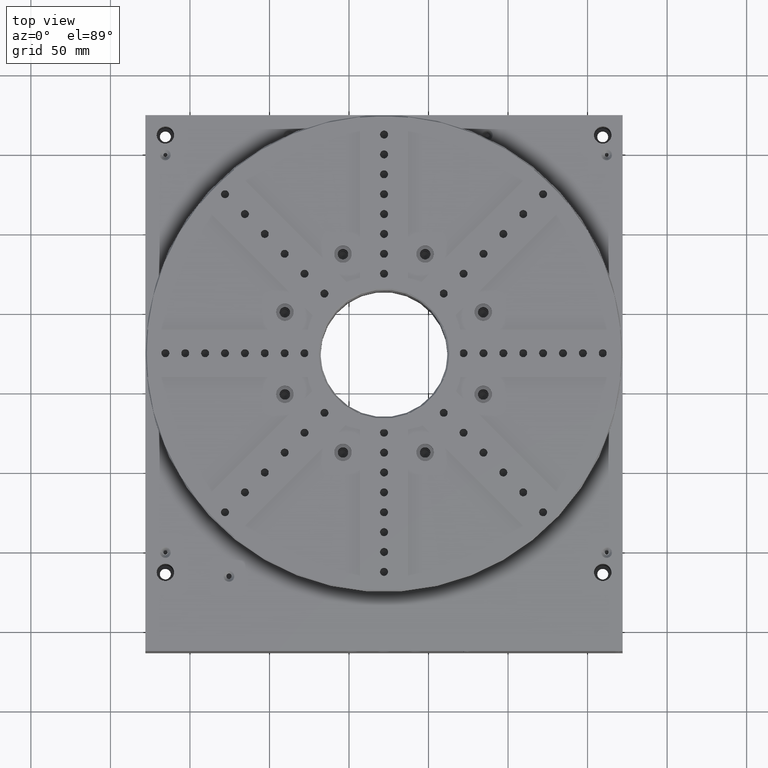
[diagram: clean part render]
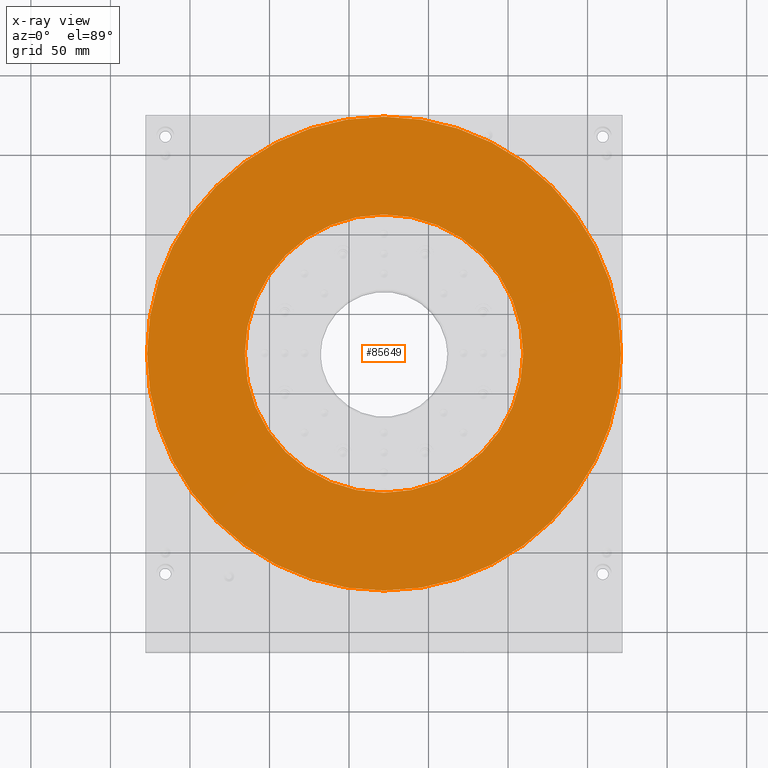
[diagram: x-ray — body ghosted, one internal face saturated and labeled with its STEP entity id]
A machine part, top view, then the same camera in x-ray: the body is ghosted and one INTERNAL B-rep face — a face not visible from any outside direction — is saturated and labeled: STEP entity #85649.
In plain terms, the highlighted planar face has unit normal (0, 0, 1).
Its self-contained STEP definition (entity closure, byte-faithful):
#8804 = AXIS2_PLACEMENT_3D ( 'NONE', #88772, #28481, #85054 ) ;
#13086 = ORIENTED_EDGE ( 'NONE', *, *, #64956, .T. ) ;
#17137 = FACE_BOUND ( 'NONE', #91481, .T. ) ;
#21084 = DIRECTION ( 'NONE',  ( 1.000000000000000000, 0.000000000000000000, 0.000000000000000000 ) ) ;
#21150 = CARTESIAN_POINT ( 'NONE',  ( -165.4981614067040141, 23.85578295678970306, 369.0000000000000000 ) ) ;
#27479 = VERTEX_POINT ( 'NONE', #143444 ) ;
#28481 = DIRECTION ( 'NONE',  ( 0.000000000000000000, 0.000000000000000000, 1.000000000000000000 ) ) ;
#31273 = FACE_OUTER_BOUND ( 'NONE', #88185, .T. ) ;
#36114 = VERTEX_POINT ( 'NONE', #53141 ) ;
#37380 = CARTESIAN_POINT ( 'NONE',  ( -77.99816140670421305, 23.85578295678970306, 369.0000000000000000 ) ) ;
#43176 = DIRECTION ( 'NONE',  ( 0.000000000000000000, 0.000000000000000000, -1.000000000000000000 ) ) ;
#48669 = AXIS2_PLACEMENT_3D ( 'NONE', #127154, #68728, #143144 ) ;
#51535 = DIRECTION ( 'NONE',  ( 0.000000000000000000, 0.000000000000000000, 1.000000000000000000 ) ) ;
#53141 = CARTESIAN_POINT ( 'NONE',  ( 9.501838593295840241, 23.85578295678970306, 369.0000000000000000 ) ) ;
#54129 = CARTESIAN_POINT ( 'NONE',  ( -226.9981614067044973, 23.85578295678970306, 369.0000000000000000 ) ) ;
#55644 = VERTEX_POINT ( 'NONE', #21150 ) ;
#64956 = EDGE_CURVE ( 'NONE', #27479, #98515, #132900, .T. ) ;
#68728 = DIRECTION ( 'NONE',  ( 0.000000000000000000, 0.000000000000000000, -1.000000000000000000 ) ) ;
#68817 = AXIS2_PLACEMENT_3D ( 'NONE', #37380, #51535, #69401 ) ;
#69401 = DIRECTION ( 'NONE',  ( 1.000000000000000000, 0.000000000000000000, 0.000000000000000000 ) ) ;
#69506 = ORIENTED_EDGE ( 'NONE', *, *, #77711, .T. ) ;
#71404 = EDGE_CURVE ( 'NONE', #36114, #55644, #135007, .T. ) ;
#77711 = EDGE_CURVE ( 'NONE', #98515, #27479, #87904, .T. ) ;
#80153 = CIRCLE ( 'NONE', #104259, 87.50000000000000000 ) ;
#83037 = ORIENTED_EDGE ( 'NONE', *, *, #91690, .T. ) ;
#85054 = DIRECTION ( 'NONE',  ( 1.000000000000000000, 0.000000000000000000, 0.000000000000000000 ) ) ;
#85618 = DIRECTION ( 'NONE',  ( 1.000000000000000000, 0.000000000000000000, 0.000000000000000000 ) ) ;
#85649 = ADVANCED_FACE ( 'NONE', ( #17137, #31273 ), #117978, .F. ) ;
#87904 = CIRCLE ( 'NONE', #163110, 149.0000000000000000 ) ;
#88185 = EDGE_LOOP ( 'NONE', ( #13086, #69506 ) ) ;
#88772 = CARTESIAN_POINT ( 'NONE',  ( -77.99816140670421305, 23.85578295678970306, 369.0000000000000000 ) ) ;
#91481 = EDGE_LOOP ( 'NONE', ( #83037, #182548 ) ) ;
#91690 = EDGE_CURVE ( 'NONE', #55644, #36114, #80153, .T. ) ;
#98515 = VERTEX_POINT ( 'NONE', #54129 ) ;
#104259 = AXIS2_PLACEMENT_3D ( 'NONE', #107765, #135124, #21084 ) ;
#107765 = CARTESIAN_POINT ( 'NONE',  ( -77.99816140670421305, 23.85578295678970306, 369.0000000000000000 ) ) ;
#117978 = PLANE ( 'NONE',  #8804 ) ;
#127154 = CARTESIAN_POINT ( 'NONE',  ( -77.99816140670421305, 23.85578295678970306, 369.0000000000000000 ) ) ;
#132900 = CIRCLE ( 'NONE', #48669, 149.0000000000000000 ) ;
#135007 = CIRCLE ( 'NONE', #68817, 87.50000000000000000 ) ;
#135124 = DIRECTION ( 'NONE',  ( 0.000000000000000000, 0.000000000000000000, 1.000000000000000000 ) ) ;
#143144 = DIRECTION ( 'NONE',  ( 1.000000000000000000, 0.000000000000000000, 0.000000000000000000 ) ) ;
#143444 = CARTESIAN_POINT ( 'NONE',  ( 71.00183859329590064, 23.85578295678970306, 369.0000000000000000 ) ) ;
#144032 = CARTESIAN_POINT ( 'NONE',  ( -77.99816140670421305, 23.85578295678970306, 369.0000000000000000 ) ) ;
#163110 = AXIS2_PLACEMENT_3D ( 'NONE', #144032, #43176, #85618 ) ;
#182548 = ORIENTED_EDGE ( 'NONE', *, *, #71404, .T. ) ;